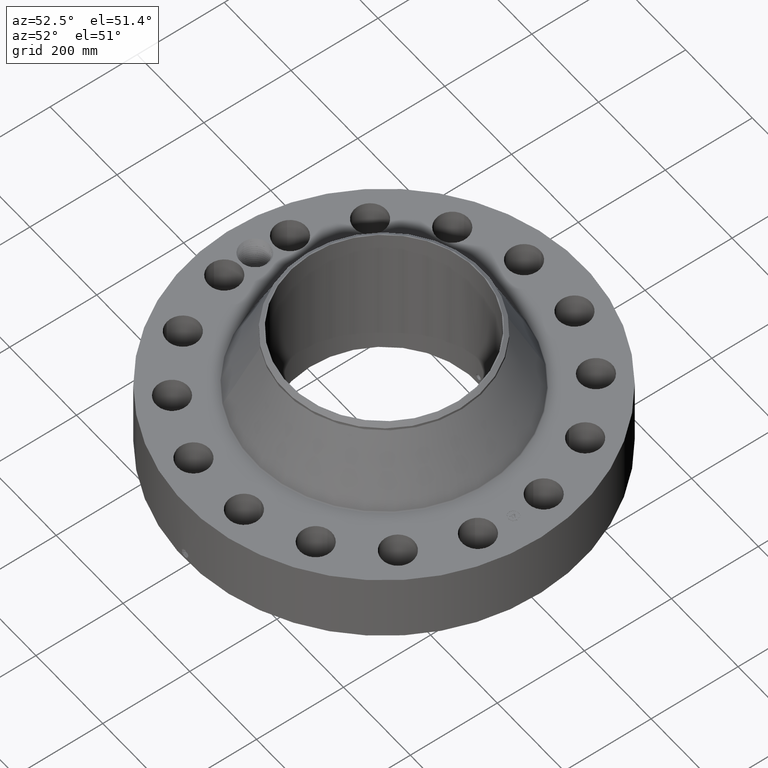
[diagram: clean part render]
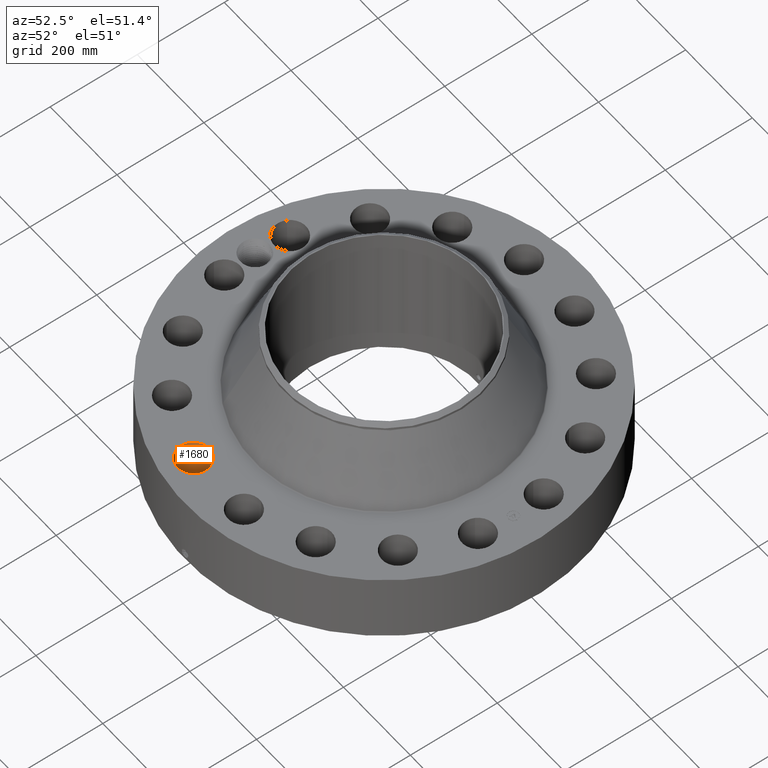
[diagram: same view with one face highlighted and labeled with its STEP entity id]
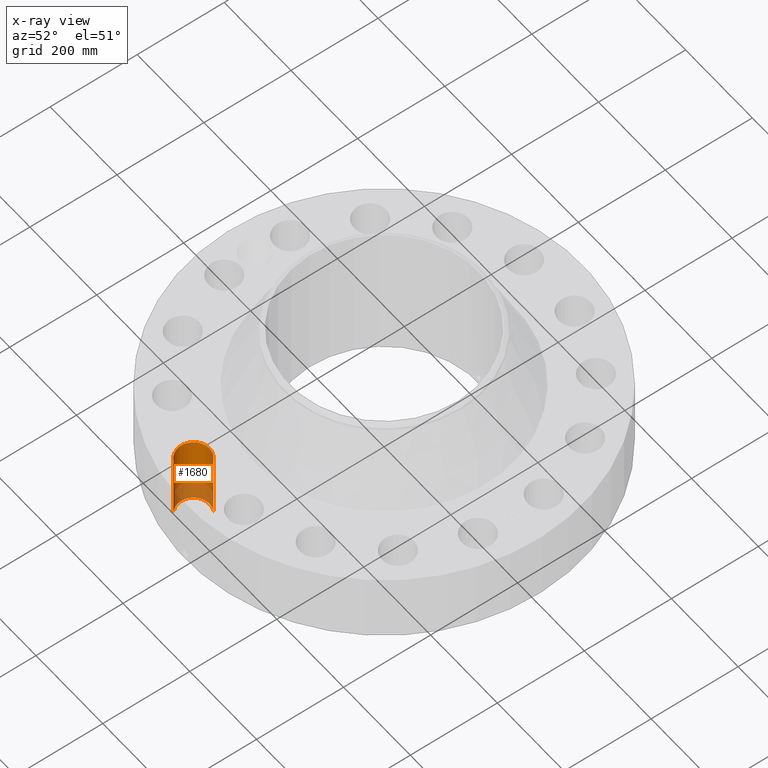
[diagram: x-ray of the same camera — body ghosted, the highlighted face saturated]
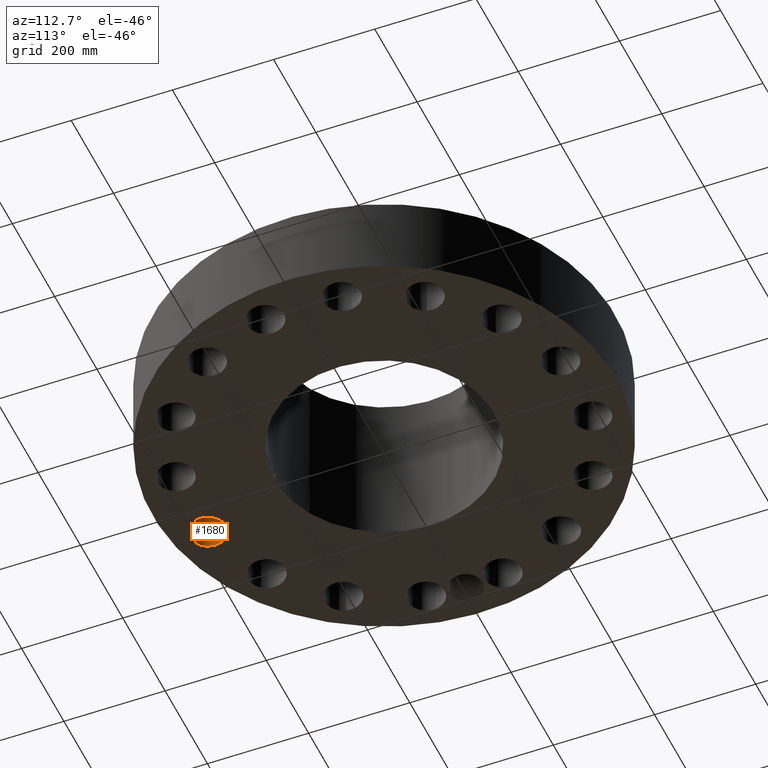
[diagram: same view with one face highlighted and labeled with its STEP entity id]
A machine part, auxiliary view. The second image highlights one B-rep face of the part: STEP entity #1680.
The next image is the same camera in x-ray: the body ghosted, the highlighted face saturated — about 30% of this face is hidden behind the body in this view.
A second angle (auxiliary view) of the same face is appended — the face is thin or edge-on in the first view.
In plain terms, the highlighted cylindrical surface (edge-blend (fillet) strip) has radius 36.576 mm, axis along (0, -0, -1).
Its self-contained STEP definition (entity closure, byte-faithful):
#352=AXIS2_PLACEMENT_3D('Circle Axis2P3D',#350,#351,$) ;
#822=AXIS2_PLACEMENT_3D('Circle Axis2P3D',#820,#821,$) ;
#1655=AXIS2_PLACEMENT_3D('Cylinder Axis2P3D',#1652,#1653,#1654) ;
#345=CARTESIAN_POINT('Vertex',(-2.28475463517,-13.6932566371,0.250000000001)) ;
#347=CARTESIAN_POINT('Vertex',(-3.66550018635,-16.2206944153,0.250000000001)) ;
#350=CARTESIAN_POINT('Axis2P3D Location',(-2.97512741076,-14.9569755262,0.250000000001)) ;
#820=CARTESIAN_POINT('Axis2P3D Location',(-2.97512741076,-14.9569755262,6.63000000003)) ;
#824=CARTESIAN_POINT('Vertex',(-3.66550018635,-16.2206944153,6.63000000003)) ;
#826=CARTESIAN_POINT('Vertex',(-2.28475463517,-13.6932566371,6.63000000003)) ;
#1652=CARTESIAN_POINT('Axis2P3D Location',(-2.97512741076,-14.9569755262,6.62606299215)) ;
#1657=CARTESIAN_POINT('Line Origine',(-2.28475463517,-13.6932566371,3.44000000001)) ;
#1662=CARTESIAN_POINT('Line Origine',(-3.66550018635,-16.2206944153,3.44000000001)) ;
#351=DIRECTION('Axis2P3D Direction',(0.,0.,-0.0393700787402)) ;
#821=DIRECTION('Axis2P3D Direction',(0.,0.,-0.0393700787402)) ;
#1653=DIRECTION('Axis2P3D Direction',(0.,-0.,-0.0393700787402)) ;
#1654=DIRECTION('Axis2P3D XDirection',(-0.0188750212049,-0.0345504945626,0.)) ;
#1658=DIRECTION('Vector Direction',(0.,0.,-0.0393700787402)) ;
#1663=DIRECTION('Vector Direction',(0.,0.,-0.0393700787402)) ;
#1659=VECTOR('Line Direction',#1658,0.0393700787402) ;
#1664=VECTOR('Line Direction',#1663,0.0393700787402) ;
#1675=ORIENTED_EDGE('',*,*,#1666,.F.) ;
#1676=ORIENTED_EDGE('',*,*,#354,.T.) ;
#1677=ORIENTED_EDGE('',*,*,#1661,.T.) ;
#1678=ORIENTED_EDGE('',*,*,#828,.F.) ;
#1680=ADVANCED_FACE('PartBody',(#1679),#1656,.F.) ;
#353=CIRCLE('generated circle',#352,1.44000000001) ;
#823=CIRCLE('generated circle',#822,1.44000000001) ;
#1656=CYLINDRICAL_SURFACE('generated cylinder',#1655,1.44000000001) ;
#354=EDGE_CURVE('',#348,#346,#353,.T.) ;
#828=EDGE_CURVE('',#825,#827,#823,.T.) ;
#1661=EDGE_CURVE('',#346,#827,#1660,.F.) ;
#1666=EDGE_CURVE('',#348,#825,#1665,.F.) ;
#1674=EDGE_LOOP('',(#1675,#1676,#1677,#1678)) ;
#1679=FACE_OUTER_BOUND('',#1674,.T.) ;
#1660=LINE('Line',#1657,#1659) ;
#1665=LINE('Line',#1662,#1664) ;
#346=VERTEX_POINT('',#345) ;
#348=VERTEX_POINT('',#347) ;
#825=VERTEX_POINT('',#824) ;
#827=VERTEX_POINT('',#826) ;